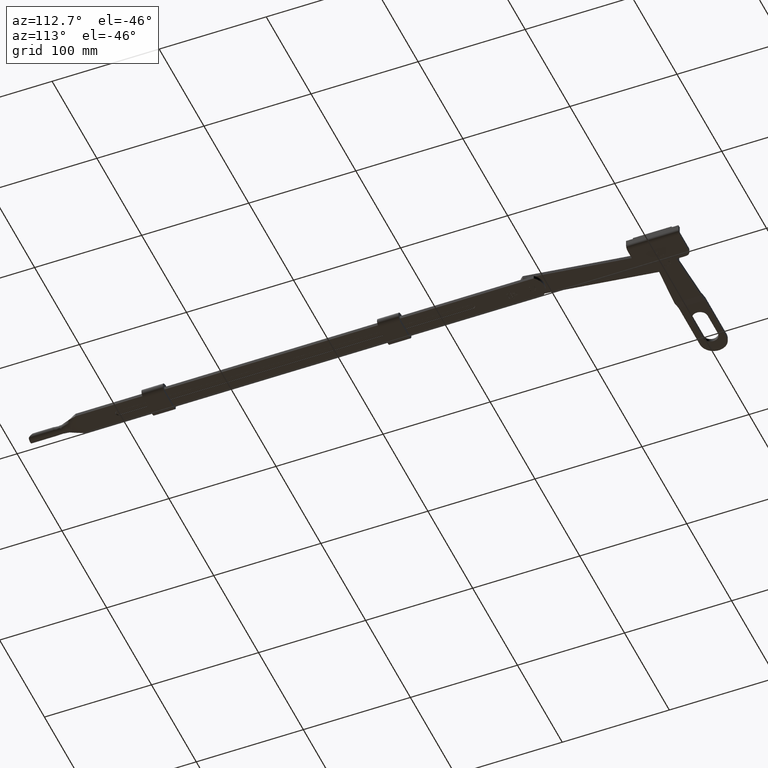
[diagram: clean part render]
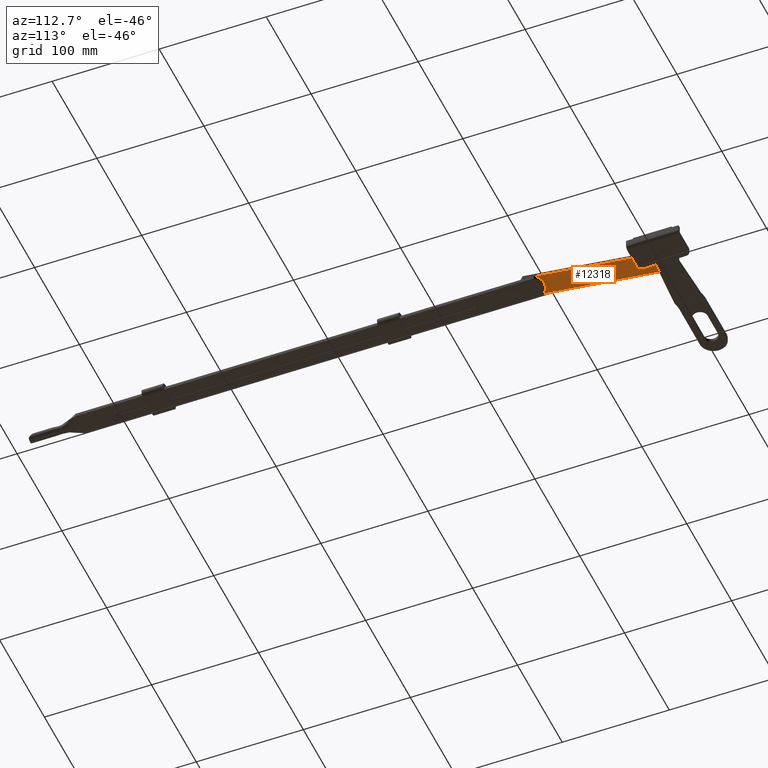
[diagram: same view with one face highlighted and labeled with its STEP entity id]
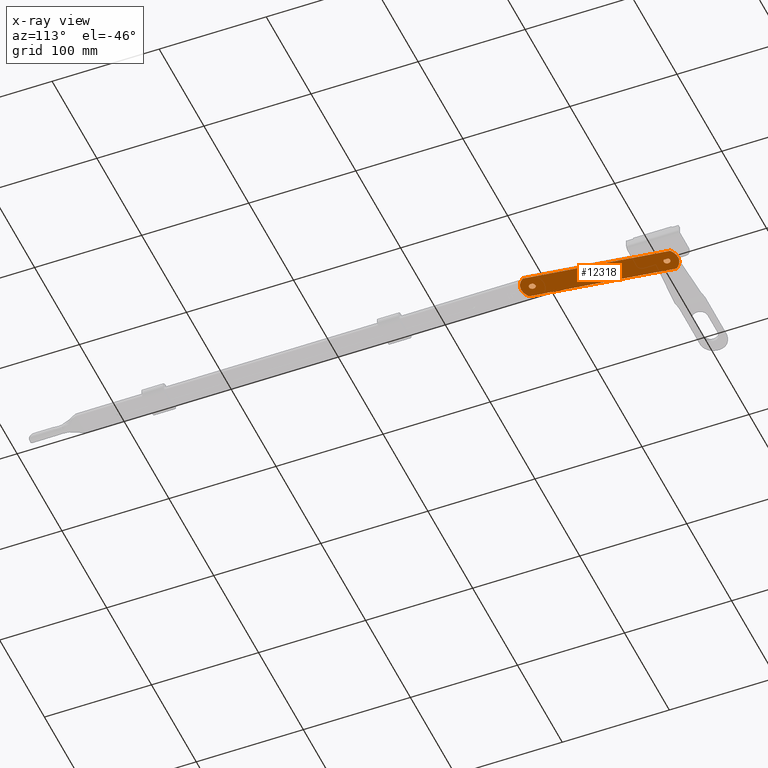
[diagram: x-ray of the same camera — body ghosted, the highlighted face saturated]
A machine part, auxiliary view. The second image highlights one B-rep face of the part: STEP entity #12318.
The next image is the same camera in x-ray: the body ghosted, the highlighted face saturated — about 0% of this face is hidden behind the body in this view.
In plain terms, the highlighted planar face has unit normal (0, -0, -1).
Its self-contained STEP definition (entity closure, byte-faithful):
#285 = DIRECTION ( 'NONE',  ( -1.000000000000000000, 0.000000000000000000, 0.000000000000000000 ) ) ;
#956 = CIRCLE ( 'NONE', #8784, 3.000000000000003553 ) ;
#1194 = AXIS2_PLACEMENT_3D ( 'NONE', #2992, #6817, #10752 ) ;
#1334 = DIRECTION ( 'NONE',  ( 1.000000000000000000, 0.000000000000000000, 0.000000000000000000 ) ) ;
#1442 = EDGE_LOOP ( 'NONE', ( #12598, #12592, #3214, #10782 ) ) ;
#1653 = EDGE_LOOP ( 'NONE', ( #2121 ) ) ;
#1715 = CARTESIAN_POINT ( 'NONE',  ( -7.725455413428234826E-15, 55.50000000000000711, -1.500000000000000000 ) ) ;
#1872 = VERTEX_POINT ( 'NONE', #6720 ) ;
#2121 = ORIENTED_EDGE ( 'NONE', *, *, #2200, .T. ) ;
#2200 = EDGE_CURVE ( 'NONE', #11891, #11891, #13005, .T. ) ;
#2260 = VECTOR ( 'NONE', #3662, 1000.000000000000000 ) ;
#2362 = CIRCLE ( 'NONE', #1194, 14.99999999999999645 ) ;
#2423 = EDGE_CURVE ( 'NONE', #6475, #1872, #2362, .T. ) ;
#2655 = EDGE_CURVE ( 'NONE', #12512, #11043, #14655, .T. ) ;
#2722 = CARTESIAN_POINT ( 'NONE',  ( 3.000000000000003553, 60.00000000000001421, -1.500000000000000000 ) ) ;
#2992 = CARTESIAN_POINT ( 'NONE',  ( -7.725455413428234826E-15, -55.49999999999997868, -1.500000000000000000 ) ) ;
#3014 = EDGE_LOOP ( 'NONE', ( #11185 ) ) ;
#3214 = ORIENTED_EDGE ( 'NONE', *, *, #2423, .F. ) ;
#3621 = DIRECTION ( 'NONE',  ( 0.000000000000000000, 0.000000000000000000, 1.000000000000000000 ) ) ;
#3662 = DIRECTION ( 'NONE',  ( 0.000000000000000000, -1.000000000000000000, 0.000000000000000000 ) ) ;
#3773 = CARTESIAN_POINT ( 'NONE',  ( -11.00000000000000711, -65.69803902718554411, -1.500000000000000000 ) ) ;
#3918 = DIRECTION ( 'NONE',  ( 0.000000000000000000, 0.000000000000000000, 1.000000000000000000 ) ) ;
#3984 = LINE ( 'NONE', #15772, #16231 ) ;
#4097 = EDGE_CURVE ( 'NONE', #1872, #12512, #3984, .T. ) ;
#4449 = FACE_BOUND ( 'NONE', #3014, .T. ) ;
#5062 = FACE_BOUND ( 'NONE', #1653, .T. ) ;
#5207 = CARTESIAN_POINT ( 'NONE',  ( 10.99999999999999289, 65.69803902718557254, -1.500000000000000000 ) ) ;
#5228 = PLANE ( 'NONE',  #15435 ) ;
#5608 = DIRECTION ( 'NONE',  ( -0.000000000000000000, 0.000000000000000000, -1.000000000000000000 ) ) ;
#6072 = AXIS2_PLACEMENT_3D ( 'NONE', #13055, #14378, #14259 ) ;
#6475 = VERTEX_POINT ( 'NONE', #3773 ) ;
#6720 = CARTESIAN_POINT ( 'NONE',  ( 10.99999999999998934, -65.69803902718554411, -1.500000000000000000 ) ) ;
#6817 = DIRECTION ( 'NONE',  ( 0.000000000000000000, 0.000000000000000000, 1.000000000000000000 ) ) ;
#8586 = EDGE_CURVE ( 'NONE', #11043, #6475, #10505, .T. ) ;
#8784 = AXIS2_PLACEMENT_3D ( 'NONE', #13288, #3918, #1334 ) ;
#9343 = DIRECTION ( 'NONE',  ( -0.000000000000000000, 1.000000000000000000, -0.000000000000000000 ) ) ;
#10505 = LINE ( 'NONE', #16717, #2260 ) ;
#10752 = DIRECTION ( 'NONE',  ( 1.000000000000000000, 0.000000000000000000, 0.000000000000000000 ) ) ;
#10782 = ORIENTED_EDGE ( 'NONE', *, *, #8586, .F. ) ;
#11043 = VERTEX_POINT ( 'NONE', #15670 ) ;
#11185 = ORIENTED_EDGE ( 'NONE', *, *, #12294, .T. ) ;
#11891 = VERTEX_POINT ( 'NONE', #15867 ) ;
#12294 = EDGE_CURVE ( 'NONE', #15769, #15769, #956, .T. ) ;
#12318 = ADVANCED_FACE ( 'NONE', ( #4449, #14685, #5062 ), #5228, .T. ) ;
#12512 = VERTEX_POINT ( 'NONE', #5207 ) ;
#12592 = ORIENTED_EDGE ( 'NONE', *, *, #4097, .F. ) ;
#12598 = ORIENTED_EDGE ( 'NONE', *, *, #2655, .F. ) ;
#13005 = CIRCLE ( 'NONE', #14891, 3.000000000000003109 ) ;
#13055 = CARTESIAN_POINT ( 'NONE',  ( -7.725455413428234826E-15, 55.50000000000000711, -1.500000000000000000 ) ) ;
#13288 = CARTESIAN_POINT ( 'NONE',  ( 0.000000000000000000, 60.00000000000001421, -1.500000000000000000 ) ) ;
#14259 = DIRECTION ( 'NONE',  ( -1.000000000000000000, 0.000000000000000000, 0.000000000000000000 ) ) ;
#14378 = DIRECTION ( 'NONE',  ( 0.000000000000000000, 0.000000000000000000, 1.000000000000000000 ) ) ;
#14655 = CIRCLE ( 'NONE', #6072, 14.99999999999999645 ) ;
#14685 = FACE_OUTER_BOUND ( 'NONE', #1442, .T. ) ;
#14891 = AXIS2_PLACEMENT_3D ( 'NONE', #16675, #3621, #16741 ) ;
#15435 = AXIS2_PLACEMENT_3D ( 'NONE', #1715, #5608, #285 ) ;
#15670 = CARTESIAN_POINT ( 'NONE',  ( -11.00000000000000711, 65.69803902718557254, -1.500000000000000000 ) ) ;
#15769 = VERTEX_POINT ( 'NONE', #2722 ) ;
#15772 = CARTESIAN_POINT ( 'NONE',  ( 10.99999999999999289, 65.69803902718557254, -1.500000000000000000 ) ) ;
#15867 = CARTESIAN_POINT ( 'NONE',  ( 3.000000000000003109, -59.99999999999998579, -1.500000000000000000 ) ) ;
#16231 = VECTOR ( 'NONE', #9343, 1000.000000000000000 ) ;
#16675 = CARTESIAN_POINT ( 'NONE',  ( 0.000000000000000000, -59.99999999999998579, -1.500000000000000000 ) ) ;
#16717 = CARTESIAN_POINT ( 'NONE',  ( -11.00000000000000711, 65.69803902718557254, -1.500000000000000000 ) ) ;
#16741 = DIRECTION ( 'NONE',  ( 1.000000000000000000, 0.000000000000000000, 0.000000000000000000 ) ) ;